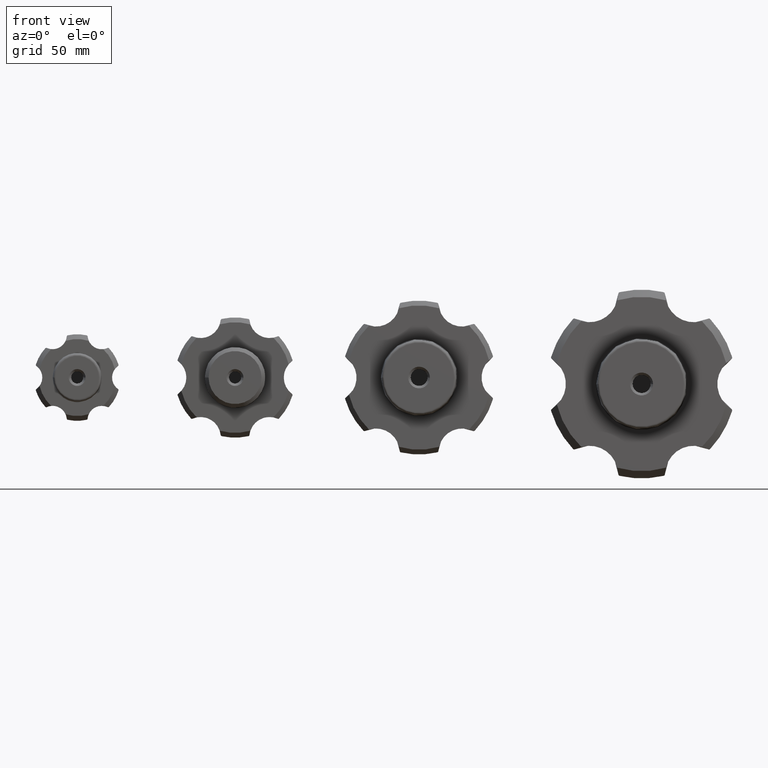
[diagram: clean part render]
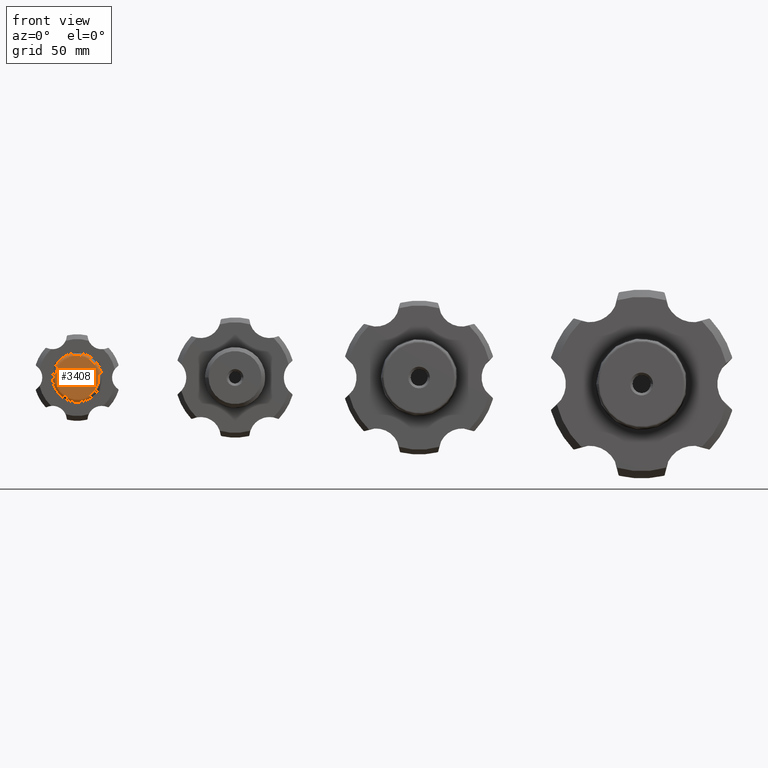
[diagram: same view with one face highlighted and labeled with its STEP entity id]
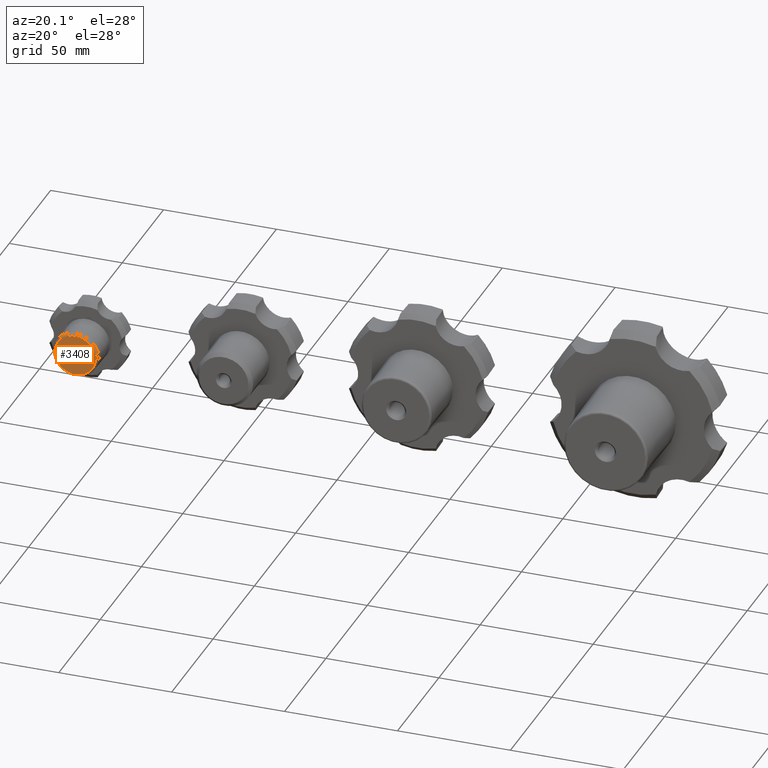
[diagram: same view with one face highlighted and labeled with its STEP entity id]
A machine part, front view. The second image highlights one B-rep face of the part: STEP entity #3408.
A second angle (auxiliary view) of the same face is appended — the face is thin or edge-on in the first view.
In plain terms, the highlighted planar face has unit normal (0, 1, 0).
Its self-contained STEP definition (entity closure, byte-faithful):
#542=PLANE('',#3673);
#559=FACE_BOUND('',#853,.T.);
#593=FACE_OUTER_BOUND('',#852,.T.);
#852=EDGE_LOOP('',(#2302));
#853=EDGE_LOOP('',(#2303));
#1142=CIRCLE('',#3671,9.01418367867502);
#1144=CIRCLE('',#3674,3.5);
#1440=VERTEX_POINT('',#5234);
#1442=VERTEX_POINT('',#5239);
#1762=EDGE_CURVE('',#1440,#1440,#1142,.T.);
#1764=EDGE_CURVE('',#1442,#1442,#1144,.T.);
#2302=ORIENTED_EDGE('',*,*,#1762,.F.);
#2303=ORIENTED_EDGE('',*,*,#1764,.F.);
#3408=ADVANCED_FACE('',(#593,#559),#542,.F.);
#3671=AXIS2_PLACEMENT_3D('',#5235,#4178,#4179);
#3673=AXIS2_PLACEMENT_3D('',#5238,#4182,#4183);
#3674=AXIS2_PLACEMENT_3D('',#5240,#4184,#4185);
#4178=DIRECTION('center_axis',(0.,1.,0.));
#4179=DIRECTION('ref_axis',(1.,0.,1.22464679914735E-16));
#4182=DIRECTION('center_axis',(0.,1.,0.));
#4183=DIRECTION('ref_axis',(0.,0.,1.));
#4184=DIRECTION('center_axis',(0.,-1.,0.));
#4185=DIRECTION('ref_axis',(-1.,0.,0.));
#5234=CARTESIAN_POINT('',(-9.01418367867502,-14.,0.));
#5235=CARTESIAN_POINT('Origin',(0.,-14.,0.));
#5238=CARTESIAN_POINT('Origin',(0.,-14.,0.));
#5239=CARTESIAN_POINT('',(3.5,-14.,4.28626379701574E-16));
#5240=CARTESIAN_POINT('Origin',(0.,-14.,0.));